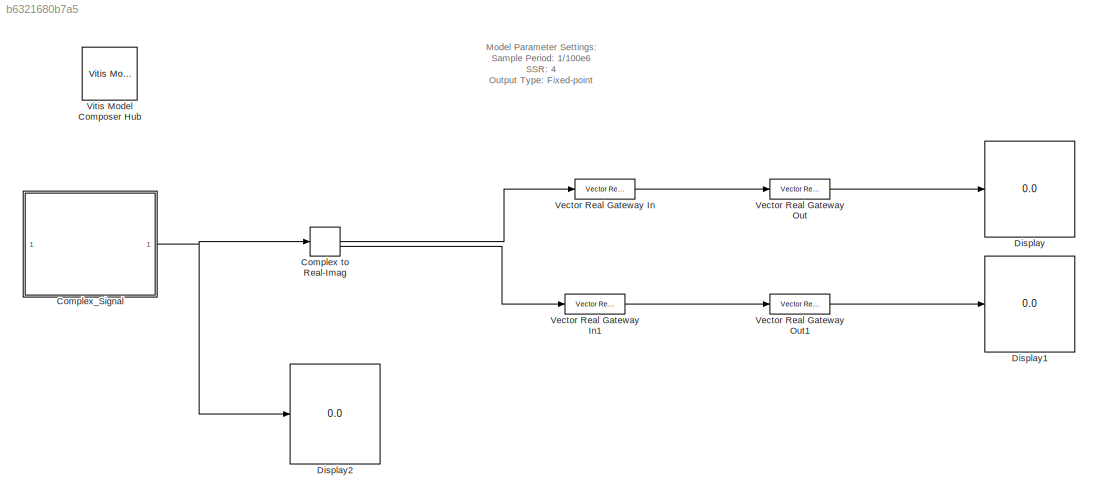
MODEL slx_b6321680b7a5
KIND model
CONFIG AbsTol = auto
CONFIG EnableMultiTasking = on
CONFIG FixedStep = auto
CONFIG MaxStep = auto
CONFIG MinStep = auto
CONFIG RelTol = 1e-3
CONFIG SampleTimeConstraint = Unconstrained
CONFIG SolverName = ode45
CONFIG StartTime = 0.0
CONFIG StopTime = 64/100e6
BLOCK [ComplexToRealImag] Complex to Real-Imag
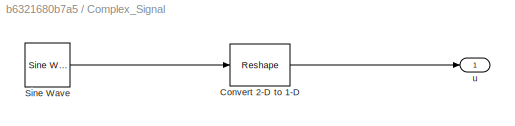
BLOCK [SubSystem] Complex_Signal
BLOCK [Reshape] Complex_Signal/Convert 2-D to 1-D
BLOCK [Reference] Complex_Signal/Sine Wave  REF=dspsrcs4/Sine Wave
  SourceBlock = dspsrcs4/Sine Wave
  SourceType = Sine Wave
BLOCK [Outport] Complex_Signal/u
BLOCK [Display] Display
  Decimation = 1
BLOCK [Display] Display1
  Decimation = 1
BLOCK [Display] Display2
  Decimation = 1
BLOCK [Reference] Vector Real Gateway In  REF=hdlSSR/Vector Real Gateway In
  SourceBlock = hdlSSR/Vector Real Gateway In
  SourceType = Xilinx Vector Gateway In Block
BLOCK [Reference] Vector Real Gateway In1  REF=hdlSSR/Vector Real Gateway In
  SourceBlock = hdlSSR/Vector Real Gateway In
  SourceType = Xilinx Vector Gateway In Block
BLOCK [Reference] Vector Real Gateway Out  REF=hdlSSR/Vector Real Gateway Out
  SourceBlock = hdlSSR/Vector Real Gateway Out
  SourceType = Xilinx Vector Gateway Out Block
BLOCK [Reference] Vector Real Gateway Out1  REF=hdlSSR/Vector Real Gateway Out
  SourceBlock = hdlSSR/Vector Real Gateway Out
  SourceType = Xilinx Vector Gateway Out Block
BLOCK [Reference] Vitis Model Composer Hub  REF=vmcUtilities/Vitis Model Composer Hub
  SourceBlock = vmcUtilities/Vitis Model Composer Hub
  SourceType = VMC Hub
  Tag = genX
  UserDataPersistent = on
ANNOTATION (root): Model Parameter Settings: Sample Period: 1/100e6 SSR: 4 Output Type: Fixed-point
LINE Complex to Real-Imag:1 -> Vector Real Gateway In:1
LINE Complex to Real-Imag:2 -> Vector Real Gateway In1:1
LINE Complex_Signal/Convert 2-D to 1-D:1 -> Complex_Signal/u:1
LINE Complex_Signal/Sine Wave:1 -> Complex_Signal/Convert 2-D to 1-D:1
NET Complex_Signal:1 -> Complex to Real-Imag:1, Display2:1
LINE Vector Real Gateway In1:1 -> Vector Real Gateway Out1:1
LINE Vector Real Gateway In:1 -> Vector Real Gateway Out:1
LINE Vector Real Gateway Out1:1 -> Display1:1
LINE Vector Real Gateway Out:1 -> Display:1
note: NET lines group one-source signal fan-out (src -> all destinations, sorted); 1:1 wires keep LINE
